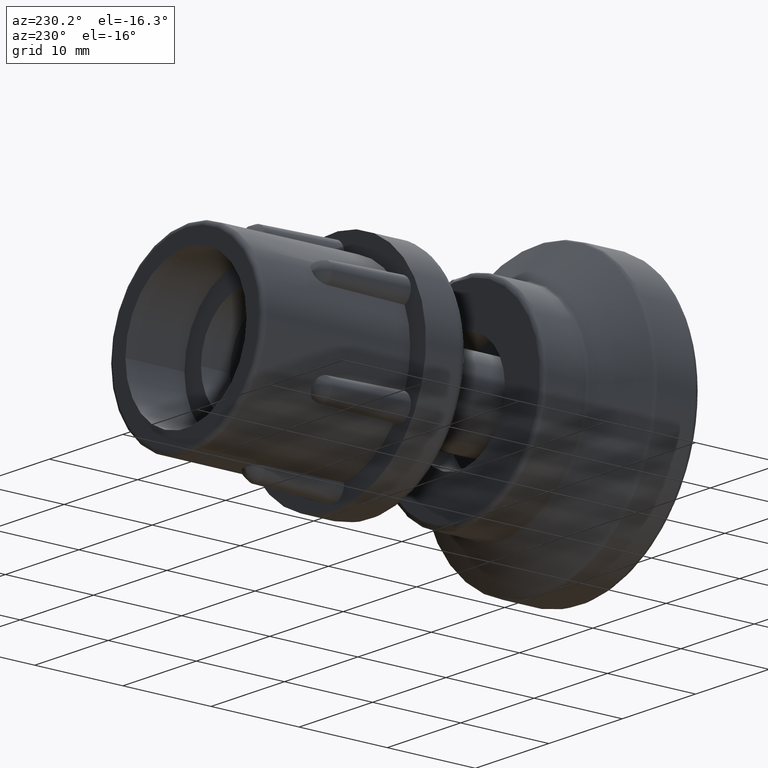
[diagram: clean part render]
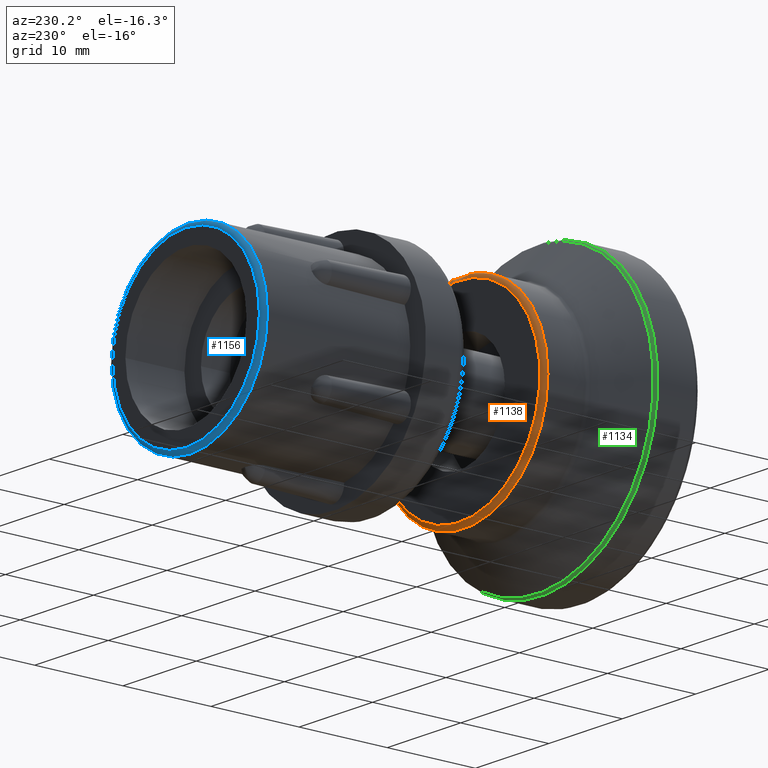
[diagram: same view with three faces highlighted in distinct colors, each labeled with its STEP entity id]
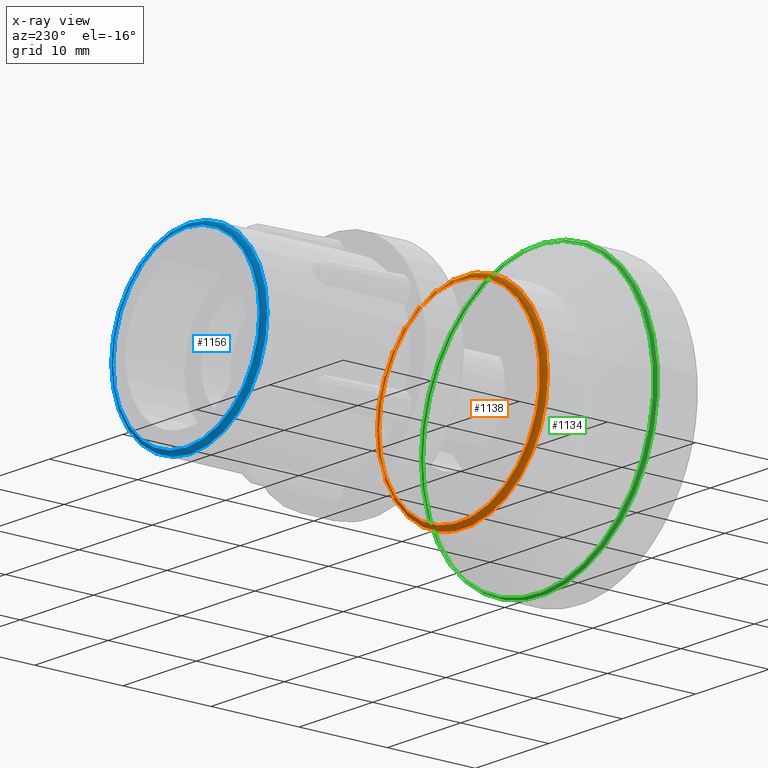
[diagram: x-ray of the same camera — body ghosted, the three highlighted faces saturated]
A machine part, auxiliary view with three faces highlighted in distinct colors.
The next image is the same camera in x-ray (body ghosted, the three faces saturated) — at least one of them is partly hidden behind the body in this view.
Their STEP definitions:

[orange] entity #1138 — the highlighted toroidal blend (fillet) surface has major radius 11 mm and minor (blend) radius 0.5 mm.
#49=FACE_BOUND('',#306,.T.);
#90=CIRCLE('',#1239,11.5);
#91=CIRCLE('',#1241,11.);
#153=TOROIDAL_SURFACE('',#1240,11.,0.5);
#218=FACE_OUTER_BOUND('',#305,.T.);
#305=EDGE_LOOP('',(#875));
#306=EDGE_LOOP('',(#876));
#553=VERTEX_POINT('',#2004);
#554=VERTEX_POINT('',#2007);
#685=EDGE_CURVE('',#553,#553,#90,.T.);
#686=EDGE_CURVE('',#554,#554,#91,.T.);
#875=ORIENTED_EDGE('',*,*,#686,.T.);
#876=ORIENTED_EDGE('',*,*,#685,.T.);
#1138=ADVANCED_FACE('',(#218,#49),#153,.T.);
#1239=AXIS2_PLACEMENT_3D('',#2005,#1484,#1485);
#1240=AXIS2_PLACEMENT_3D('',#2006,#1486,#1487);
#1241=AXIS2_PLACEMENT_3D('',#2008,#1488,#1489);
#1484=DIRECTION('center_axis',(-6.34413156928661E-17,1.,0.));
#1485=DIRECTION('ref_axis',(-1.,-6.63720286460691E-17,1.22464679914735E-16));
#1486=DIRECTION('center_axis',(6.34413156928661E-17,-1.,0.));
#1487=DIRECTION('ref_axis',(0.,0.,-1.));
#1488=DIRECTION('center_axis',(6.34413156928661E-17,-1.,0.));
#1489=DIRECTION('ref_axis',(-1.,-6.34413156928661E-17,1.22464679914735E-16));
#2004=CARTESIAN_POINT('',(11.5,13.5,-2.81668763803891E-15));
#2005=CARTESIAN_POINT('Origin',(-8.56457761853692E-16,13.5,0.));
#2006=CARTESIAN_POINT('Origin',(-8.56457761853692E-16,13.5,0.));
#2007=CARTESIAN_POINT('',(11.,14.,0.));
#2008=CARTESIAN_POINT('Origin',(-8.88178419700125E-16,14.,0.));

[blue] entity #1156 — the highlighted toroidal blend (fillet) surface has major radius 10 mm and minor (blend) radius 0.5 mm.
#56=FACE_BOUND('',#331,.T.);
#106=CIRCLE('',#1275,10.);
#107=CIRCLE('',#1276,10.5);
#154=TOROIDAL_SURFACE('',#1274,10.,0.5);
#236=FACE_OUTER_BOUND('',#330,.T.);
#330=EDGE_LOOP('',(#952));
#331=EDGE_LOOP('',(#953));
#560=VERTEX_POINT('',#2047);
#561=VERTEX_POINT('',#2049);
#701=EDGE_CURVE('',#560,#560,#106,.T.);
#702=EDGE_CURVE('',#561,#561,#107,.T.);
#952=ORIENTED_EDGE('',*,*,#701,.T.);
#953=ORIENTED_EDGE('',*,*,#702,.T.);
#1156=ADVANCED_FACE('',(#236,#56),#154,.T.);
#1274=AXIS2_PLACEMENT_3D('',#2046,#1554,#1555);
#1275=AXIS2_PLACEMENT_3D('',#2048,#1556,#1557);
#1276=AXIS2_PLACEMENT_3D('',#2050,#1558,#1559);
#1554=DIRECTION('center_axis',(7.00321971967498E-17,-1.,0.));
#1555=DIRECTION('ref_axis',(0.,0.,-1.));
#1556=DIRECTION('center_axis',(7.00321971967498E-17,-1.,0.));
#1557=DIRECTION('ref_axis',(-1.,-7.00321971967498E-17,1.22464679914735E-16));
#1558=DIRECTION('center_axis',(-7.00321971967498E-17,1.,0.));
#1559=DIRECTION('ref_axis',(-1.,-7.26931742314091E-17,1.22464679914735E-16));
#2046=CARTESIAN_POINT('Origin',(-1.13452159458735E-15,21.,0.));
#2047=CARTESIAN_POINT('',(10.,21.5,0.));
#2048=CARTESIAN_POINT('Origin',(-1.16953769318572E-15,21.5,0.));
#2049=CARTESIAN_POINT('',(10.5,21.,-2.57175827820944E-15));
#2050=CARTESIAN_POINT('Origin',(-1.13452159458735E-15,21.,0.));

[green] entity #1134 — the highlighted toroidal blend (fillet) surface has major radius 15.5 mm and minor (blend) radius 0.5 mm.
#45=FACE_BOUND('',#298,.T.);
#85=CIRCLE('',#1229,16.);
#87=CIRCLE('',#1233,15.832181919415);
#151=TOROIDAL_SURFACE('',#1232,15.5,0.5);
#214=FACE_OUTER_BOUND('',#297,.T.);
#297=EDGE_LOOP('',(#867));
#298=EDGE_LOOP('',(#868));
#548=VERTEX_POINT('',#1989);
#550=VERTEX_POINT('',#1995);
#680=EDGE_CURVE('',#548,#548,#85,.T.);
#682=EDGE_CURVE('',#550,#550,#87,.T.);
#867=ORIENTED_EDGE('',*,*,#682,.T.);
#868=ORIENTED_EDGE('',*,*,#680,.T.);
#1134=ADVANCED_FACE('',(#214,#45),#151,.T.);
#1229=AXIS2_PLACEMENT_3D('',#1990,#1464,#1465);
#1232=AXIS2_PLACEMENT_3D('',#1994,#1470,#1471);
#1233=AXIS2_PLACEMENT_3D('',#1996,#1472,#1473);
#1464=DIRECTION('center_axis',(-6.34413156928661E-17,1.,0.));
#1465=DIRECTION('ref_axis',(-1.,-6.28837260041592E-17,1.22464679914735E-16));
#1470=DIRECTION('center_axis',(6.34413156928661E-17,-1.,0.));
#1471=DIRECTION('ref_axis',(0.,0.,-1.));
#1472=DIRECTION('center_axis',(7.01244484352275E-17,-1.,7.01244484352276E-17));
#1473=DIRECTION('ref_axis',(-1.,-7.01244484352275E-17,0.));
#1989=CARTESIAN_POINT('',(16.,4.77546696784487,-3.91886975727153E-15));
#1990=CARTESIAN_POINT('Origin',(-3.029619074879E-16,4.77546696784487,0.));
#1994=CARTESIAN_POINT('Origin',(-3.029619074879E-16,4.77546696784487,0.));
#1995=CARTESIAN_POINT('',(15.832181919415,5.1491716271867,2.46519032881566E-31));
#1996=CARTESIAN_POINT('Origin',(-1.11022302462516E-15,5.1491716271867,-1.93888309111301E-15));